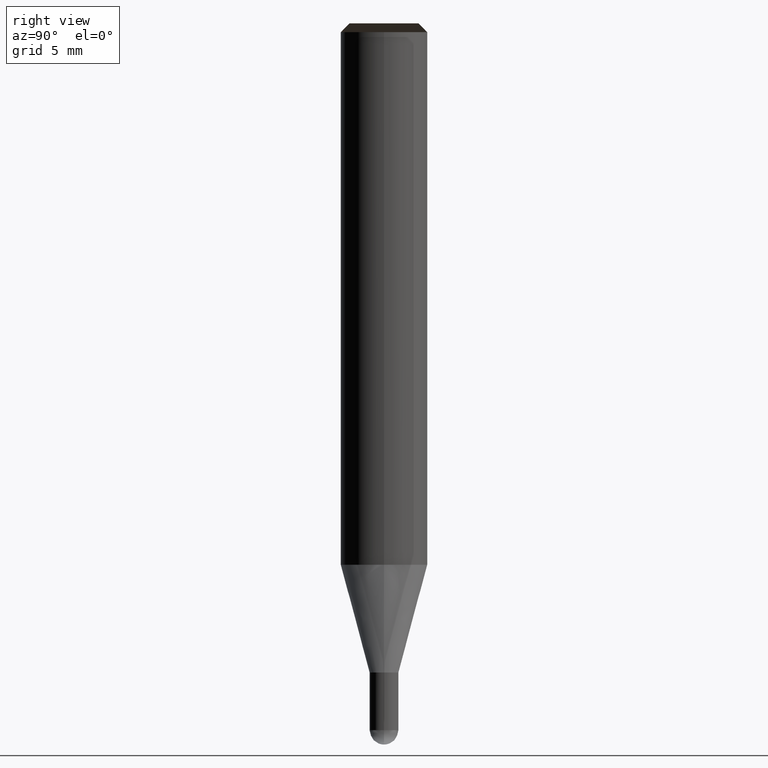
[diagram: clean part render]
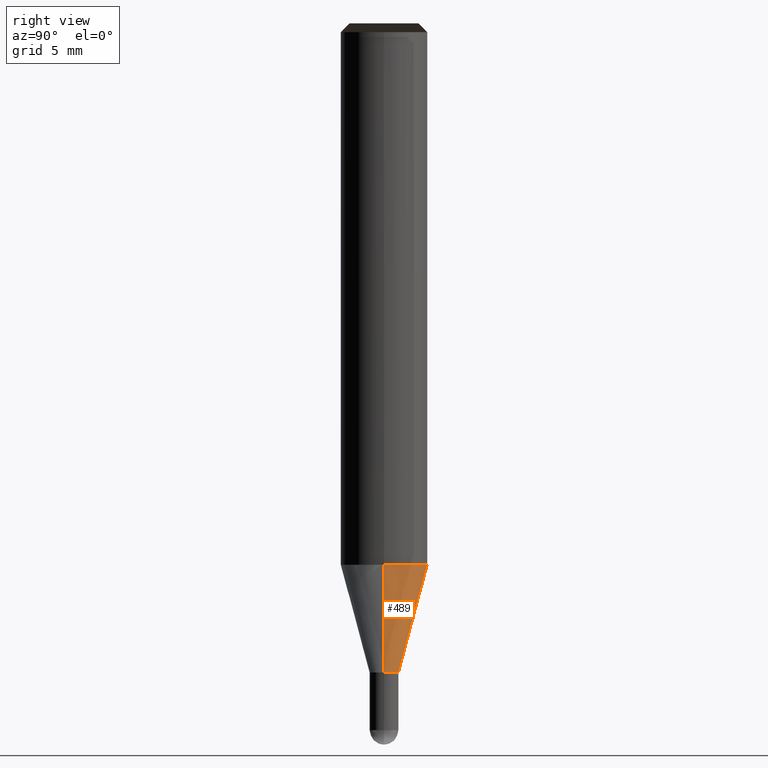
[diagram: same view with one face highlighted and labeled with its STEP entity id]
A machine part, right view. The second image highlights one B-rep face of the part: STEP entity #489.
In plain terms, the highlighted face is a freeform B-spline surface patch.
Its self-contained STEP definition (entity closure, byte-faithful):
#288=CARTESIAN_POINT('',(1.0,0.0,-7.464101615138));
#289=CARTESIAN_POINT('',(1.0,1.0,-7.464101615138));
#290=CARTESIAN_POINT('',(0.0,1.0,-7.464101615138));
#291=CARTESIAN_POINT('',(-1.0,1.0,-7.464101615138));
#292=CARTESIAN_POINT('',(-1.0,0.0,-7.464101615138));
#293=CARTESIAN_POINT('',(3.0,0.0,-0.0));
#294=CARTESIAN_POINT('',(3.0,3.0,-0.0));
#295=CARTESIAN_POINT('',(0.0,3.0,-0.0));
#296=CARTESIAN_POINT('',(-3.0,3.0,-0.0));
#297=CARTESIAN_POINT('',(-3.0,0.0,-0.0));
#470=(
BOUNDED_SURFACE()
B_SPLINE_SURFACE(1,2,(
(#288,#289,#290,#291,#292),
(#293,#294,#295,#296,#297)
), .UNSPECIFIED.,.F.,.F.,.F.)
B_SPLINE_SURFACE_WITH_KNOTS((2,2),(3,2,3),(
0.0,1.0),(
0.0,0.5,1.0), .UNSPECIFIED.)
GEOMETRIC_REPRESENTATION_ITEM()
RATIONAL_B_SPLINE_SURFACE(((1.0,0.707106781187,1.0,0.707106781187,1.0),
(1.0,0.707106781187,1.0,0.707106781187,1.0)
))
REPRESENTATION_ITEM('')
SURFACE()
);
#471=(
BOUNDED_CURVE()
B_SPLINE_CURVE(2,(#293,#294,#295,#296,#297),.UNSPECIFIED.,.F.,.F.)
B_SPLINE_CURVE_WITH_KNOTS((3,2,3),
(0.0,0.5,1.0),.UNSPECIFIED.)
CURVE()
GEOMETRIC_REPRESENTATION_ITEM()
RATIONAL_B_SPLINE_CURVE((1.0,0.707106781187,1.0,0.707106781187,1.0))
REPRESENTATION_ITEM('')
);
#472=(
BOUNDED_CURVE()
B_SPLINE_CURVE(1,(#297,#292),.UNSPECIFIED.,.F.,.F.)
B_SPLINE_CURVE_WITH_KNOTS((2,2),
(0.0,1.0),.UNSPECIFIED.)
CURVE()
GEOMETRIC_REPRESENTATION_ITEM()
RATIONAL_B_SPLINE_CURVE((1.0,1.0))
REPRESENTATION_ITEM('')
);
#473=(
BOUNDED_CURVE()
B_SPLINE_CURVE(2,(#292,#291,#290,#289,#288),.UNSPECIFIED.,.F.,.F.)
B_SPLINE_CURVE_WITH_KNOTS((3,2,3),
(0.0,0.5,1.0),.UNSPECIFIED.)
CURVE()
GEOMETRIC_REPRESENTATION_ITEM()
RATIONAL_B_SPLINE_CURVE((1.0,0.707106781187,1.0,0.707106781187,1.0))
REPRESENTATION_ITEM('')
);
#474=(
BOUNDED_CURVE()
B_SPLINE_CURVE(1,(#288,#293),.UNSPECIFIED.,.F.,.F.)
B_SPLINE_CURVE_WITH_KNOTS((2,2),
(0.0,1.0),.UNSPECIFIED.)
CURVE()
GEOMETRIC_REPRESENTATION_ITEM()
RATIONAL_B_SPLINE_CURVE((1.0,1.0))
REPRESENTATION_ITEM('')
);
#475=VERTEX_POINT('',#288);
#476=VERTEX_POINT('',#292);
#477=VERTEX_POINT('',#293);
#478=VERTEX_POINT('',#297);
#479=EDGE_CURVE('',#477,#478,#471,.T.);
#480=EDGE_CURVE('',#478,#476,#472,.T.);
#481=EDGE_CURVE('',#476,#475,#473,.T.);
#482=EDGE_CURVE('',#475,#477,#474,.T.);
#483=ORIENTED_EDGE('',*,*,#479,.T.);
#484=ORIENTED_EDGE('',*,*,#480,.T.);
#485=ORIENTED_EDGE('',*,*,#481,.T.);
#486=ORIENTED_EDGE('',*,*,#482,.T.);
#487=EDGE_LOOP('',(#483,#484,#485,#486));
#488=FACE_OUTER_BOUND('',#487,.T.);
#489=ADVANCED_FACE('',(#488),#470,.T.);